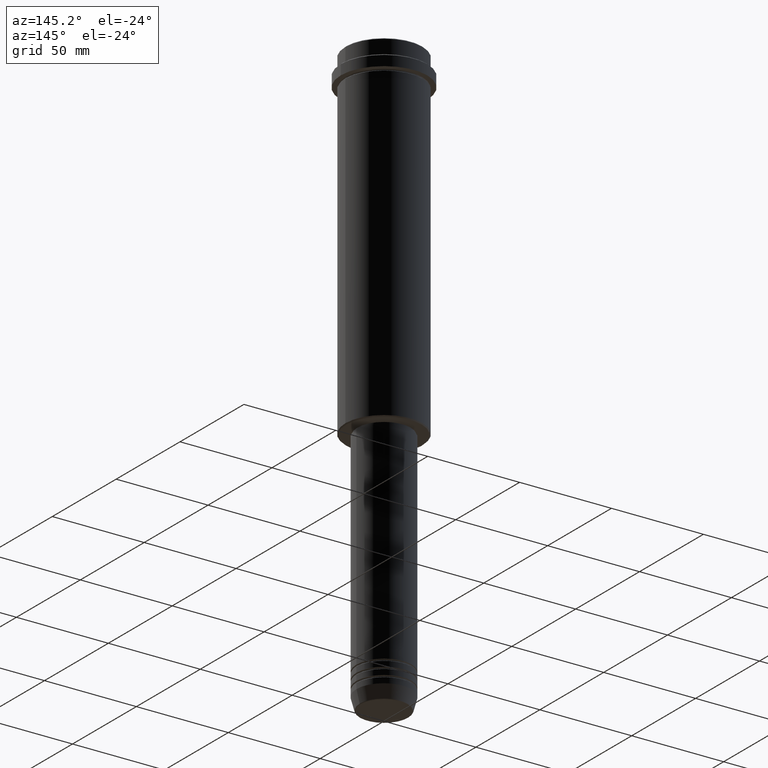
[diagram: clean part render]
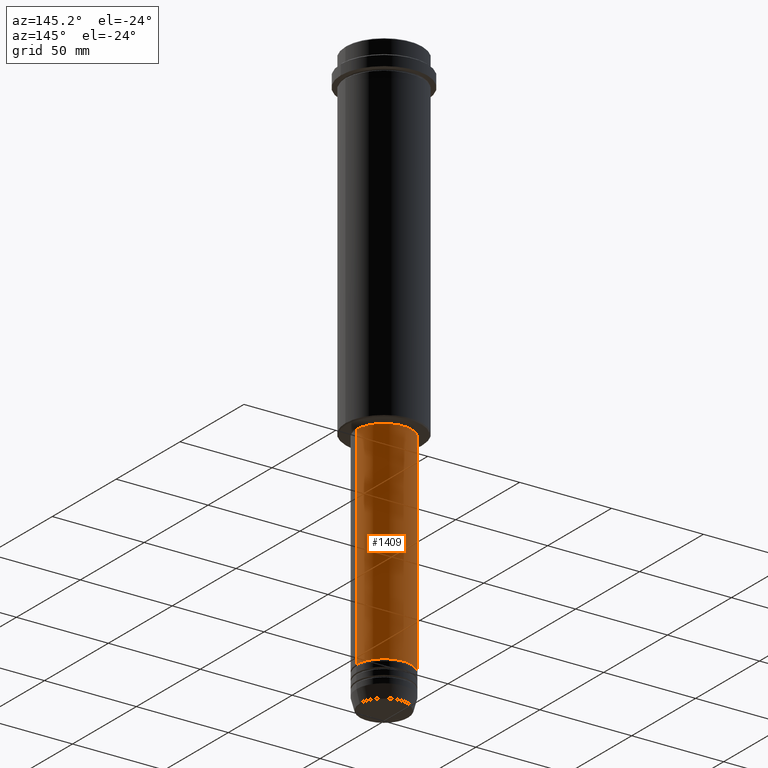
[diagram: same view with one face highlighted and labeled with its STEP entity id]
A machine part, auxiliary view. The second image highlights one B-rep face of the part: STEP entity #1409.
In plain terms, the highlighted cylindrical surface (edge-blend (fillet) strip) has radius 15 mm, axis along (-0, -0, 1).
Its self-contained STEP definition (entity closure, byte-faithful):
#40 = LINE ( 'NONE', #615, #1090 ) ;
#45 = AXIS2_PLACEMENT_3D ( 'NONE', #286, #516, #552 ) ;
#78 = CARTESIAN_POINT ( 'NONE',  ( 0.000000000000000000, 0.000000000000000000, -185.9999999999999147 ) ) ;
#95 = DIRECTION ( 'NONE',  ( 1.000000000000000000, 0.000000000000000000, 0.000000000000000000 ) ) ;
#99 = DIRECTION ( 'NONE',  ( -0.000000000000000000, -0.000000000000000000, 1.000000000000000000 ) ) ;
#101 = DIRECTION ( 'NONE',  ( 1.000000000000000000, 0.000000000000000000, 0.000000000000000000 ) ) ;
#187 = CYLINDRICAL_SURFACE ( 'NONE', #45, 15.00000000000000000 ) ;
#207 = DIRECTION ( 'NONE',  ( -0.000000000000000000, -0.000000000000000000, 1.000000000000000000 ) ) ;
#263 = ORIENTED_EDGE ( 'NONE', *, *, #1197, .F. ) ;
#286 = CARTESIAN_POINT ( 'NONE',  ( 0.000000000000000000, 0.000000000000000000, 0.000000000000000000 ) ) ;
#293 = EDGE_LOOP ( 'NONE', ( #1407, #419, #580, #263 ) ) ;
#370 = VERTEX_POINT ( 'NONE', #922 ) ;
#396 = EDGE_CURVE ( 'NONE', #545, #370, #40, .T. ) ;
#401 = AXIS2_PLACEMENT_3D ( 'NONE', #756, #1402, #95 ) ;
#419 = ORIENTED_EDGE ( 'NONE', *, *, #396, .T. ) ;
#467 = EDGE_CURVE ( 'NONE', #764, #545, #1025, .T. ) ;
#485 = EDGE_CURVE ( 'NONE', #596, #370, #1066, .T. ) ;
#496 = AXIS2_PLACEMENT_3D ( 'NONE', #78, #207, #101 ) ;
#516 = DIRECTION ( 'NONE',  ( -0.000000000000000000, -0.000000000000000000, 1.000000000000000000 ) ) ;
#545 = VERTEX_POINT ( 'NONE', #1383 ) ;
#552 = DIRECTION ( 'NONE',  ( 1.000000000000000000, 0.000000000000000000, 0.000000000000000000 ) ) ;
#580 = ORIENTED_EDGE ( 'NONE', *, *, #485, .F. ) ;
#596 = VERTEX_POINT ( 'NONE', #1388 ) ;
#615 = CARTESIAN_POINT ( 'NONE',  ( -15.00000000000000000, 1.836970198721029589E-15, 0.000000000000000000 ) ) ;
#756 = CARTESIAN_POINT ( 'NONE',  ( 0.000000000000000000, 0.000000000000000000, -300.9999999999998863 ) ) ;
#764 = VERTEX_POINT ( 'NONE', #805 ) ;
#805 = CARTESIAN_POINT ( 'NONE',  ( 15.00000000000000000, 0.000000000000000000, -300.9999999999998863 ) ) ;
#896 = LINE ( 'NONE', #1192, #1395 ) ;
#922 = CARTESIAN_POINT ( 'NONE',  ( -15.00000000000000000, 1.836970198721029589E-15, -185.9999999999999147 ) ) ;
#940 = FACE_OUTER_BOUND ( 'NONE', #293, .T. ) ;
#1025 = CIRCLE ( 'NONE', #401, 15.00000000000000000 ) ;
#1066 = CIRCLE ( 'NONE', #496, 15.00000000000000000 ) ;
#1090 = VECTOR ( 'NONE', #1365, 1000.000000000000000 ) ;
#1192 = CARTESIAN_POINT ( 'NONE',  ( 15.00000000000000000, 0.000000000000000000, 0.000000000000000000 ) ) ;
#1197 = EDGE_CURVE ( 'NONE', #764, #596, #896, .T. ) ;
#1365 = DIRECTION ( 'NONE',  ( -0.000000000000000000, -0.000000000000000000, 1.000000000000000000 ) ) ;
#1383 = CARTESIAN_POINT ( 'NONE',  ( -15.00000000000000000, 1.836970198721029589E-15, -300.9999999999998863 ) ) ;
#1388 = CARTESIAN_POINT ( 'NONE',  ( 15.00000000000000000, 0.000000000000000000, -185.9999999999999147 ) ) ;
#1395 = VECTOR ( 'NONE', #99, 1000.000000000000000 ) ;
#1402 = DIRECTION ( 'NONE',  ( -0.000000000000000000, -0.000000000000000000, 1.000000000000000000 ) ) ;
#1407 = ORIENTED_EDGE ( 'NONE', *, *, #467, .T. ) ;
#1409 = ADVANCED_FACE ( 'NONE', ( #940 ), #187, .T. ) ;